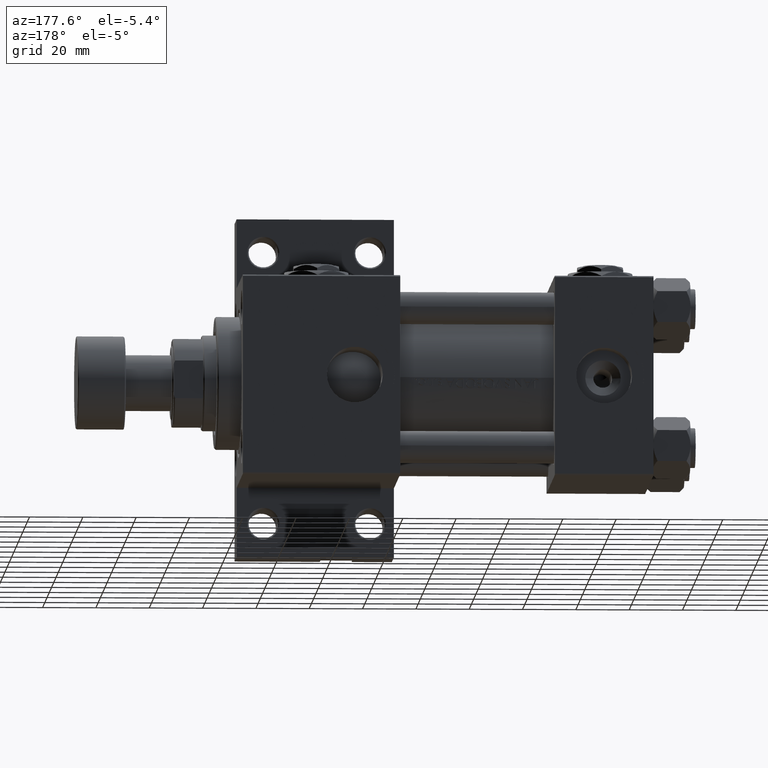
[diagram: clean part render]
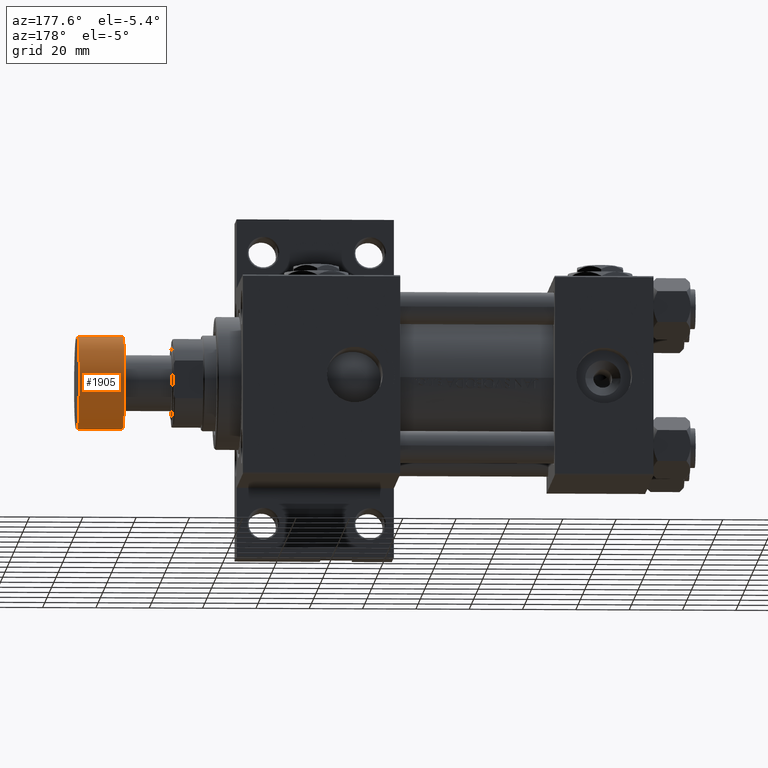
[diagram: same view with one face highlighted and labeled with its STEP entity id]
A machine part, auxiliary view. The second image highlights one B-rep face of the part: STEP entity #1905.
In plain terms, the highlighted cylindrical surface (partial cylindrical patch) has radius 17.5 mm, axis along (1, 0, 0).
Its self-contained STEP definition (entity closure, byte-faithful):
#1488 = DIRECTION ( 'NONE',  ( 1.000000000000000000, 0.000000000000000000, 0.000000000000000000 ) ) ;
#1905 = ADVANCED_FACE ( 'NONE', ( #21244 ), #36730, .T. ) ;
#1989 = VECTOR ( 'NONE', #44949, 1000.000000000000000 ) ;
#2743 = VERTEX_POINT ( 'NONE', #28371 ) ;
#3178 = CARTESIAN_POINT ( 'NONE',  ( -17.50000000000000355, 2.143131898507868643E-15, -0.5000000000000004441 ) ) ;
#4045 = EDGE_CURVE ( 'NONE', #36063, #48510, #26850, .T. ) ;
#6737 = ORIENTED_EDGE ( 'NONE', *, *, #4045, .T. ) ;
#10542 = CARTESIAN_POINT ( 'NONE',  ( 17.50000000000000355, 0.000000000000000000, -0.5000000000000004441 ) ) ;
#11834 = EDGE_CURVE ( 'NONE', #42526, #36063, #37350, .T. ) ;
#13039 = VECTOR ( 'NONE', #16155, 1000.000000000000000 ) ;
#13135 = DIRECTION ( 'NONE',  ( 0.000000000000000000, 0.000000000000000000, 1.000000000000000000 ) ) ;
#16155 = DIRECTION ( 'NONE',  ( 0.000000000000000000, 0.000000000000000000, 1.000000000000000000 ) ) ;
#19678 = DIRECTION ( 'NONE',  ( 1.000000000000000000, 0.000000000000000000, 0.000000000000000000 ) ) ;
#21244 = FACE_OUTER_BOUND ( 'NONE', #47939, .T. ) ;
#21723 = CARTESIAN_POINT ( 'NONE',  ( 0.000000000000000000, 0.000000000000000000, -17.49999999999999645 ) ) ;
#21888 = CARTESIAN_POINT ( 'NONE',  ( -17.50000000000000355, 2.143131898507868643E-15, -17.49999999999999645 ) ) ;
#21964 = DIRECTION ( 'NONE',  ( 0.000000000000000000, 0.000000000000000000, 1.000000000000000000 ) ) ;
#24395 = AXIS2_PLACEMENT_3D ( 'NONE', #44579, #13135, #1488 ) ;
#25031 = DIRECTION ( 'NONE',  ( 1.000000000000000000, 0.000000000000000000, 0.000000000000000000 ) ) ;
#26813 = DIRECTION ( 'NONE',  ( -0.000000000000000000, -0.000000000000000000, -1.000000000000000000 ) ) ;
#26850 = CIRCLE ( 'NONE', #27642, 17.50000000000000355 ) ;
#27110 = EDGE_CURVE ( 'NONE', #2743, #42526, #39256, .T. ) ;
#27642 = AXIS2_PLACEMENT_3D ( 'NONE', #31113, #26813, #19678 ) ;
#28371 = CARTESIAN_POINT ( 'NONE',  ( 17.50000000000000355, 0.000000000000000000, -17.49999999999999645 ) ) ;
#29161 = ORIENTED_EDGE ( 'NONE', *, *, #27110, .T. ) ;
#31113 = CARTESIAN_POINT ( 'NONE',  ( 0.000000000000000000, 0.000000000000000000, -0.5000000000000004441 ) ) ;
#31394 = LINE ( 'NONE', #46855, #13039 ) ;
#32006 = AXIS2_PLACEMENT_3D ( 'NONE', #21723, #21964, #25031 ) ;
#33161 = ORIENTED_EDGE ( 'NONE', *, *, #45202, .F. ) ;
#36063 = VERTEX_POINT ( 'NONE', #3178 ) ;
#36730 = CYLINDRICAL_SURFACE ( 'NONE', #24395, 17.50000000000000355 ) ;
#37350 = LINE ( 'NONE', #41388, #1989 ) ;
#39256 = CIRCLE ( 'NONE', #32006, 17.50000000000000355 ) ;
#41388 = CARTESIAN_POINT ( 'NONE',  ( -17.50000000000000355, 2.143131898507868643E-15, -18.00000000000000000 ) ) ;
#42526 = VERTEX_POINT ( 'NONE', #21888 ) ;
#44579 = CARTESIAN_POINT ( 'NONE',  ( 0.000000000000000000, 0.000000000000000000, -18.00000000000000000 ) ) ;
#44949 = DIRECTION ( 'NONE',  ( 0.000000000000000000, 0.000000000000000000, 1.000000000000000000 ) ) ;
#45202 = EDGE_CURVE ( 'NONE', #2743, #48510, #31394, .T. ) ;
#45570 = ORIENTED_EDGE ( 'NONE', *, *, #11834, .T. ) ;
#46855 = CARTESIAN_POINT ( 'NONE',  ( 17.50000000000000355, 0.000000000000000000, -18.00000000000000000 ) ) ;
#47939 = EDGE_LOOP ( 'NONE', ( #29161, #45570, #6737, #33161 ) ) ;
#48510 = VERTEX_POINT ( 'NONE', #10542 ) ;